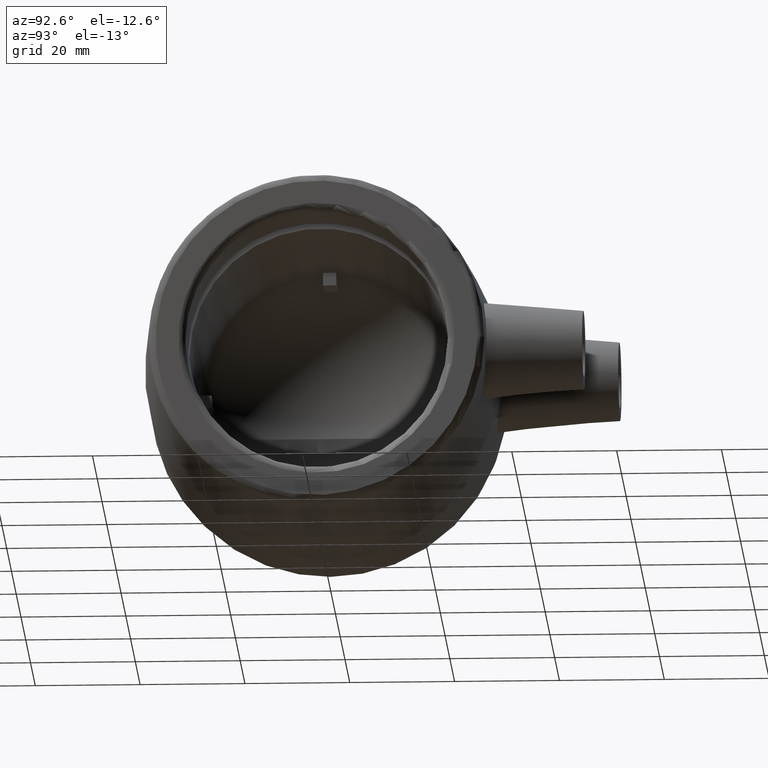
[diagram: clean part render]
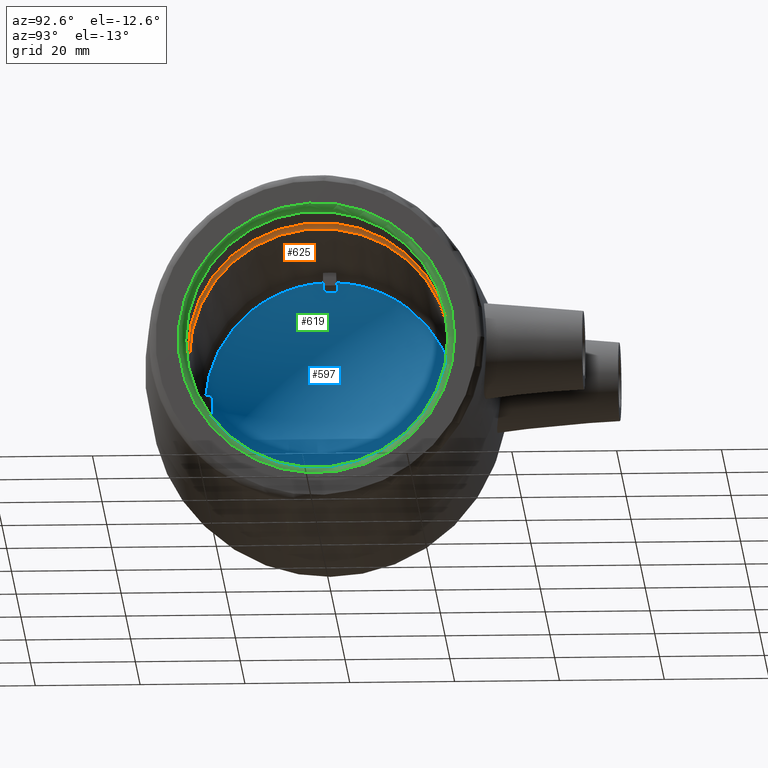
[diagram: same view with three faces highlighted in distinct colors, each labeled with its STEP entity id]
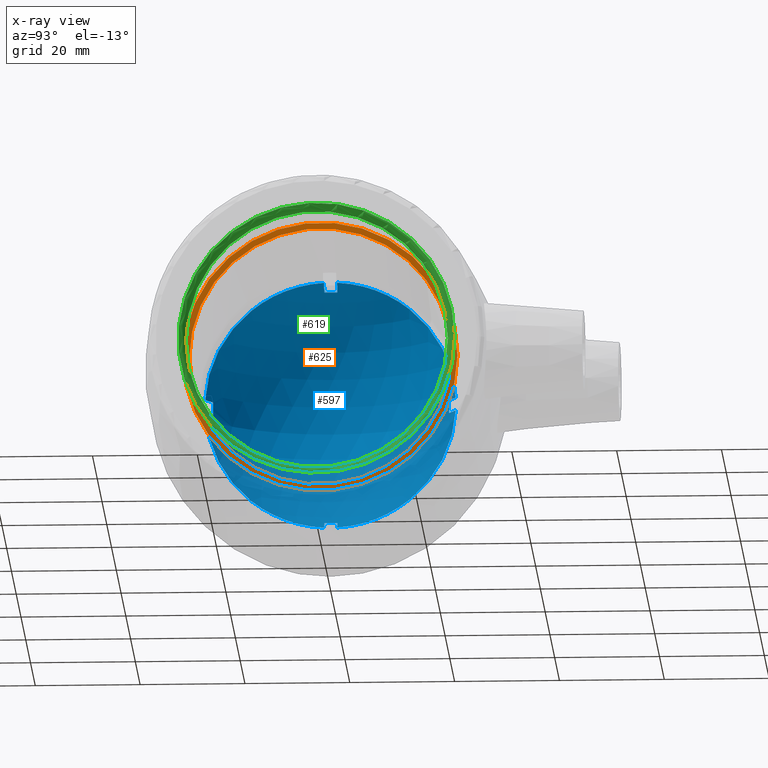
[diagram: x-ray of the same camera — body ghosted, the three highlighted faces saturated]
A machine part, auxiliary view with three faces highlighted in distinct colors.
The next image is the same camera in x-ray (body ghosted, the three faces saturated) — at least one of them is partly hidden behind the body in this view.
Their STEP definitions:

[orange] entity #625 — the highlighted planar face has unit normal (1, -0, 0).
#41=FACE_BOUND('',#217,.T.);
#151=FACE_OUTER_BOUND('',#216,.T.);
#216=EDGE_LOOP('',(#546));
#217=EDGE_LOOP('',(#547));
#266=CIRCLE('',#716,26.1619758704628);
#267=CIRCLE('',#718,25.);
#323=VERTEX_POINT('',#1249);
#324=VERTEX_POINT('',#1252);
#401=EDGE_CURVE('',#323,#323,#266,.T.);
#402=EDGE_CURVE('',#324,#324,#267,.T.);
#546=ORIENTED_EDGE('',*,*,#401,.T.);
#547=ORIENTED_EDGE('',*,*,#402,.F.);
#582=PLANE('',#717);
#625=ADVANCED_FACE('',(#151,#41),#582,.T.);
#716=AXIS2_PLACEMENT_3D('',#1250,#915,#916);
#717=AXIS2_PLACEMENT_3D('',#1251,#917,#918);
#718=AXIS2_PLACEMENT_3D('',#1253,#919,#920);
#915=DIRECTION('center_axis',(1.,-6.52773886424224E-18,0.));
#916=DIRECTION('ref_axis',(0.,0.,-1.));
#917=DIRECTION('center_axis',(1.,-6.52773886424224E-18,0.));
#918=DIRECTION('ref_axis',(0.,0.,-1.));
#919=DIRECTION('center_axis',(1.,-6.52773886424224E-18,0.));
#920=DIRECTION('ref_axis',(0.,0.,-1.));
#1249=CARTESIAN_POINT('',(-16.4,26.1619758704628,0.));
#1250=CARTESIAN_POINT('Origin',(-16.4,1.07054917373573E-16,0.));
#1251=CARTESIAN_POINT('Origin',(-16.4,25.,0.));
#1252=CARTESIAN_POINT('',(-16.4,25.,0.));
#1253=CARTESIAN_POINT('Origin',(-16.4,1.07054917373573E-16,0.));

[blue] entity #597 — the highlighted spherical surface has radius 27.5 mm.
#57=SPHERICAL_SURFACE('',#658,27.5);
#123=FACE_OUTER_BOUND('',#168,.T.);
#168=EDGE_LOOP('',(#453,#454,#455,#456,#457,#458,#459,#460,#461,#462,#463,
#464,#465,#466,#467,#468));
#224=CIRCLE('',#637,27.4715762197949);
#225=CIRCLE('',#639,15.8113883008418);
#226=CIRCLE('',#641,27.4715762197949);
#228=CIRCLE('',#645,27.4715762197949);
#229=CIRCLE('',#647,15.8113883008418);
#230=CIRCLE('',#649,27.4715762197949);
#232=CIRCLE('',#653,27.4715762197949);
#233=CIRCLE('',#655,15.8113883008418);
#234=CIRCLE('',#657,27.4715762197949);
#235=CIRCLE('',#659,23.9378238341969);
#236=CIRCLE('',#660,27.4715762197949);
#237=CIRCLE('',#661,15.8113883008418);
#238=CIRCLE('',#662,27.4715762197949);
#239=CIRCLE('',#663,23.9378238341969);
#240=CIRCLE('',#664,23.9378238341969);
#241=CIRCLE('',#665,23.9378238341969);
#274=VERTEX_POINT('',#942);
#275=VERTEX_POINT('',#951);
#276=VERTEX_POINT('',#955);
#277=VERTEX_POINT('',#959);
#282=VERTEX_POINT('',#979);
#283=VERTEX_POINT('',#988);
#284=VERTEX_POINT('',#992);
#285=VERTEX_POINT('',#996);
#290=VERTEX_POINT('',#1016);
#291=VERTEX_POINT('',#1025);
#292=VERTEX_POINT('',#1029);
#293=VERTEX_POINT('',#1033);
#294=VERTEX_POINT('',#1044);
#295=VERTEX_POINT('',#1046);
#296=VERTEX_POINT('',#1048);
#297=VERTEX_POINT('',#1050);
#332=EDGE_CURVE('',#275,#274,#224,.T.);
#334=EDGE_CURVE('',#276,#275,#225,.T.);
#337=EDGE_CURVE('',#277,#276,#226,.T.);
#343=EDGE_CURVE('',#283,#282,#228,.T.);
#345=EDGE_CURVE('',#284,#283,#229,.T.);
#348=EDGE_CURVE('',#285,#284,#230,.T.);
#354=EDGE_CURVE('',#291,#290,#232,.T.);
#356=EDGE_CURVE('',#292,#291,#233,.T.);
#359=EDGE_CURVE('',#293,#292,#234,.T.);
#360=EDGE_CURVE('',#274,#294,#235,.T.);
#361=EDGE_CURVE('',#294,#295,#236,.T.);
#362=EDGE_CURVE('',#295,#296,#237,.T.);
#363=EDGE_CURVE('',#296,#297,#238,.T.);
#364=EDGE_CURVE('',#297,#293,#239,.T.);
#365=EDGE_CURVE('',#290,#285,#240,.T.);
#366=EDGE_CURVE('',#282,#277,#241,.T.);
#453=ORIENTED_EDGE('',*,*,#337,.T.);
#454=ORIENTED_EDGE('',*,*,#334,.T.);
#455=ORIENTED_EDGE('',*,*,#332,.T.);
#456=ORIENTED_EDGE('',*,*,#360,.T.);
#457=ORIENTED_EDGE('',*,*,#361,.T.);
#458=ORIENTED_EDGE('',*,*,#362,.T.);
#459=ORIENTED_EDGE('',*,*,#363,.T.);
#460=ORIENTED_EDGE('',*,*,#364,.T.);
#461=ORIENTED_EDGE('',*,*,#359,.T.);
#462=ORIENTED_EDGE('',*,*,#356,.T.);
#463=ORIENTED_EDGE('',*,*,#354,.T.);
#464=ORIENTED_EDGE('',*,*,#365,.T.);
#465=ORIENTED_EDGE('',*,*,#348,.T.);
#466=ORIENTED_EDGE('',*,*,#345,.T.);
#467=ORIENTED_EDGE('',*,*,#343,.T.);
#468=ORIENTED_EDGE('',*,*,#366,.T.);
#597=ADVANCED_FACE('',(#123),#57,.F.);
#637=AXIS2_PLACEMENT_3D('',#952,#740,#741);
#639=AXIS2_PLACEMENT_3D('',#956,#745,#746);
#641=AXIS2_PLACEMENT_3D('',#968,#750,#751);
#645=AXIS2_PLACEMENT_3D('',#989,#761,#762);
#647=AXIS2_PLACEMENT_3D('',#993,#766,#767);
#649=AXIS2_PLACEMENT_3D('',#1005,#771,#772);
#653=AXIS2_PLACEMENT_3D('',#1026,#782,#783);
#655=AXIS2_PLACEMENT_3D('',#1030,#787,#788);
#657=AXIS2_PLACEMENT_3D('',#1042,#792,#793);
#658=AXIS2_PLACEMENT_3D('',#1043,#794,#795);
#659=AXIS2_PLACEMENT_3D('',#1045,#796,#797);
#660=AXIS2_PLACEMENT_3D('',#1047,#798,#799);
#661=AXIS2_PLACEMENT_3D('',#1049,#800,#801);
#662=AXIS2_PLACEMENT_3D('',#1051,#802,#803);
#663=AXIS2_PLACEMENT_3D('',#1052,#804,#805);
#664=AXIS2_PLACEMENT_3D('',#1053,#806,#807);
#665=AXIS2_PLACEMENT_3D('',#1054,#808,#809);
#740=DIRECTION('center_axis',(0.,1.,-1.83697019872103E-16));
#741=DIRECTION('ref_axis',(0.,1.83697019872103E-16,1.));
#745=DIRECTION('center_axis',(0.,1.83697019872103E-16,1.));
#746=DIRECTION('ref_axis',(0.,-1.,1.83697019872103E-16));
#750=DIRECTION('center_axis',(0.,-1.,1.83697019872103E-16));
#751=DIRECTION('ref_axis',(0.,-1.83697019872103E-16,-1.));
#761=DIRECTION('center_axis',(0.,-1.22464679914735E-16,-1.));
#762=DIRECTION('ref_axis',(0.,1.,-1.22464679914735E-16));
#766=DIRECTION('center_axis',(0.,1.,-1.22464679914735E-16));
#767=DIRECTION('ref_axis',(0.,1.22464679914735E-16,1.));
#771=DIRECTION('center_axis',(0.,1.22464679914735E-16,1.));
#772=DIRECTION('ref_axis',(0.,-1.,1.22464679914735E-16));
#782=DIRECTION('center_axis',(0.,-1.,6.12323399573677E-17));
#783=DIRECTION('ref_axis',(0.,-6.12323399573677E-17,-1.));
#787=DIRECTION('center_axis',(0.,-6.12323399573677E-17,-1.));
#788=DIRECTION('ref_axis',(0.,1.,-6.12323399573677E-17));
#792=DIRECTION('center_axis',(0.,1.,-6.12323399573677E-17));
#793=DIRECTION('ref_axis',(0.,6.12323399573677E-17,1.));
#794=DIRECTION('center_axis',(0.,0.,1.));
#795=DIRECTION('ref_axis',(1.,0.,0.));
#796=DIRECTION('center_axis',(1.,-6.52773886424224E-18,0.));
#797=DIRECTION('ref_axis',(0.,0.,-1.));
#798=DIRECTION('center_axis',(0.,0.,-1.));
#799=DIRECTION('ref_axis',(0.,1.,0.));
#800=DIRECTION('center_axis',(0.,-1.,0.));
#801=DIRECTION('ref_axis',(0.,0.,-1.));
#802=DIRECTION('center_axis',(0.,0.,1.));
#803=DIRECTION('ref_axis',(0.,-1.,0.));
#804=DIRECTION('center_axis',(1.,-6.52773886424224E-18,0.));
#805=DIRECTION('ref_axis',(0.,0.,-1.));
#806=DIRECTION('center_axis',(1.,-6.52773886424224E-18,0.));
#807=DIRECTION('ref_axis',(0.,0.,-1.));
#808=DIRECTION('center_axis',(1.,-6.52773886424224E-18,0.));
#809=DIRECTION('ref_axis',(0.,0.,-1.));
#942=CARTESIAN_POINT('',(-59.0362694300518,-1.25,23.9051649213521));
#951=CARTESIAN_POINT('',(-61.2619002661481,-1.25,22.5));
#952=CARTESIAN_POINT('Origin',(-45.5,-1.25,2.29621274840129E-16));
#955=CARTESIAN_POINT('',(-61.2619002661481,1.25,22.5));
#956=CARTESIAN_POINT('Origin',(-45.5,4.66845753399018E-15,22.5));
#959=CARTESIAN_POINT('',(-59.0362694300518,1.25,23.9051649213521));
#968=CARTESIAN_POINT('Origin',(-45.5,1.25,-2.29621274840129E-16));
#979=CARTESIAN_POINT('',(-59.0362694300518,23.9051649213521,1.25));
#988=CARTESIAN_POINT('',(-61.2619002661481,22.5,1.25));
#989=CARTESIAN_POINT('Origin',(-45.5,6.88355436761283E-16,1.25));
#992=CARTESIAN_POINT('',(-61.2619002661481,22.5,-1.25));
#993=CARTESIAN_POINT('Origin',(-45.5,22.5,-2.75545529808154E-15));
#996=CARTESIAN_POINT('',(-59.0362694300518,23.9051649213521,-1.25));
#1005=CARTESIAN_POINT('Origin',(-45.5,3.82193736974445E-16,-1.25));
#1016=CARTESIAN_POINT('',(-59.0362694300518,1.25,-23.9051649213521));
#1025=CARTESIAN_POINT('',(-61.2619002661481,1.25,-22.5));
#1026=CARTESIAN_POINT('Origin',(-45.5,1.25,-7.65404249467096E-17));
#1029=CARTESIAN_POINT('',(-61.2619002661481,-1.25,-22.5));
#1030=CARTESIAN_POINT('Origin',(-45.5,-8.42453062172909E-16,-22.5));
#1033=CARTESIAN_POINT('',(-59.0362694300518,-1.25,-23.9051649213521));
#1042=CARTESIAN_POINT('Origin',(-45.5,-1.25,7.65404249467096E-17));
#1043=CARTESIAN_POINT('Origin',(-45.5,5.35274586867864E-16,0.));
#1044=CARTESIAN_POINT('',(-59.0362694300518,-23.9051649213521,1.25));
#1045=CARTESIAN_POINT('Origin',(-59.0362694300518,3.85373350358425E-16,
0.));
#1046=CARTESIAN_POINT('',(-61.2619002661481,-22.5,1.25));
#1047=CARTESIAN_POINT('Origin',(-45.5,5.35274586867864E-16,1.25));
#1048=CARTESIAN_POINT('',(-61.2619002661481,-22.5,-1.25));
#1049=CARTESIAN_POINT('Origin',(-45.5,-22.5,0.));
#1050=CARTESIAN_POINT('',(-59.0362694300518,-23.9051649213521,-1.25));
#1051=CARTESIAN_POINT('Origin',(-45.5,5.35274586867864E-16,-1.25));
#1052=CARTESIAN_POINT('Origin',(-59.0362694300518,3.85373350358425E-16,
0.));
#1053=CARTESIAN_POINT('Origin',(-59.0362694300518,3.85373350358425E-16,
0.));
#1054=CARTESIAN_POINT('Origin',(-59.0362694300518,3.85373350358425E-16,
0.));

[green] entity #619 — the highlighted toroidal blend (fillet) surface has major radius 26.36 mm and minor (blend) radius 1.36 mm.
#36=FACE_BOUND('',#206,.T.);
#55=TOROIDAL_SURFACE('',#705,26.36,1.36);
#145=FACE_OUTER_BOUND('',#205,.T.);
#205=EDGE_LOOP('',(#530));
#206=EDGE_LOOP('',(#531));
#260=CIRCLE('',#706,26.36);
#261=CIRCLE('',#707,25.);
#317=VERTEX_POINT('',#1203);
#318=VERTEX_POINT('',#1205);
#394=EDGE_CURVE('',#317,#317,#260,.T.);
#395=EDGE_CURVE('',#318,#318,#261,.T.);
#530=ORIENTED_EDGE('',*,*,#394,.T.);
#531=ORIENTED_EDGE('',*,*,#395,.T.);
#619=ADVANCED_FACE('',(#145,#36),#55,.T.);
#705=AXIS2_PLACEMENT_3D('',#1202,#893,#894);
#706=AXIS2_PLACEMENT_3D('',#1204,#895,#896);
#707=AXIS2_PLACEMENT_3D('',#1206,#897,#898);
#893=DIRECTION('center_axis',(1.,-6.52773886424224E-18,0.));
#894=DIRECTION('ref_axis',(0.,0.,-1.));
#895=DIRECTION('center_axis',(1.,-6.52773886424224E-18,0.));
#896=DIRECTION('ref_axis',(-6.52773886424224E-18,-1.,1.83697019872103E-16));
#897=DIRECTION('center_axis',(-1.,6.52773886424224E-18,0.));
#898=DIRECTION('ref_axis',(-1.11022302462516E-17,-1.,1.83697019872103E-16));
#1202=CARTESIAN_POINT('Origin',(-1.36,8.87772485536945E-18,0.));
#1203=CARTESIAN_POINT('',(-1.05484559694864E-16,26.36,-1.61408448127621E-15));
#1204=CARTESIAN_POINT('Origin',(-2.77555756156289E-16,5.77778983316171E-33,
0.));
#1205=CARTESIAN_POINT('',(-1.36,25.,-7.65404249467096E-15));
#1206=CARTESIAN_POINT('Origin',(-1.36,8.87772485536945E-18,0.));